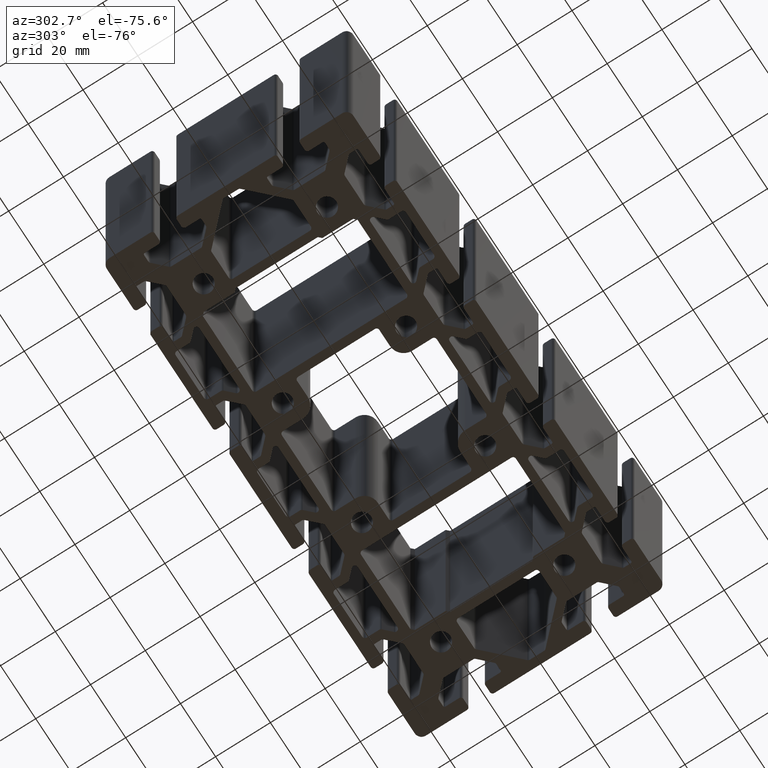
[diagram: clean part render]
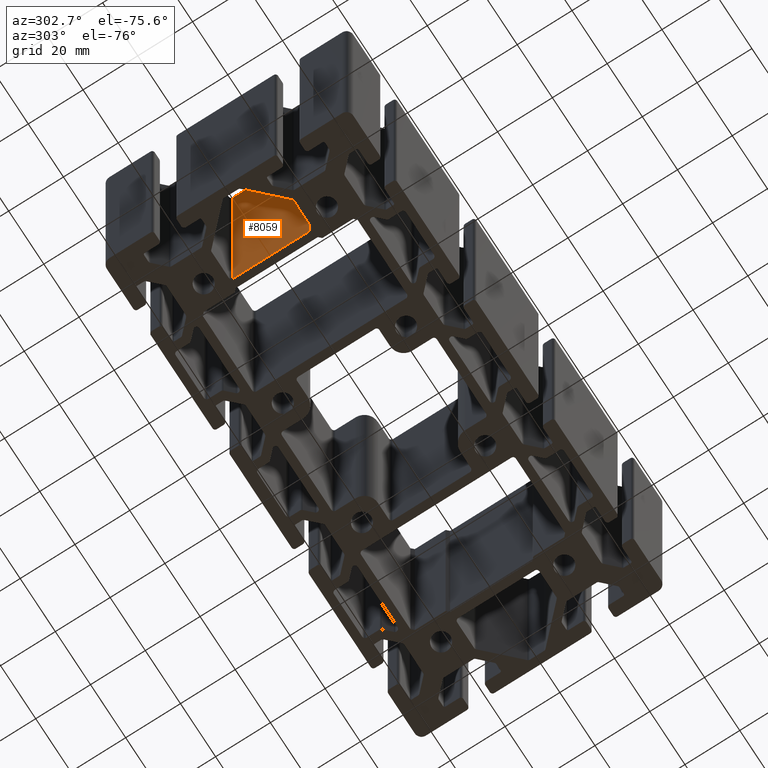
[diagram: same view with one face highlighted and labeled with its STEP entity id]
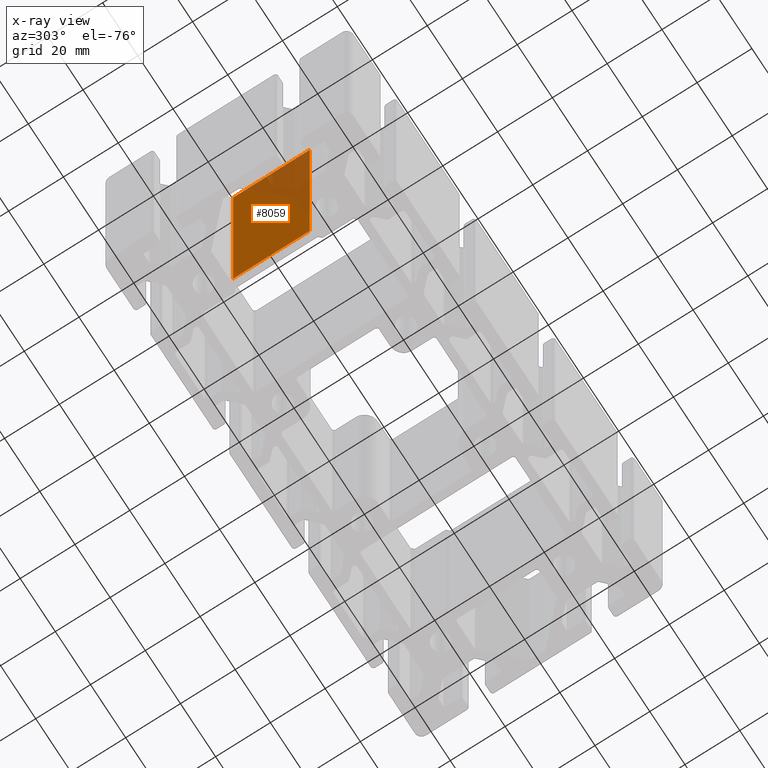
[diagram: x-ray of the same camera — body ghosted, the highlighted face saturated]
A machine part, auxiliary view. The second image highlights one B-rep face of the part: STEP entity #8059.
The next image is the same camera in x-ray: the body ghosted, the highlighted face saturated — about 30% of this face is hidden behind the body in this view.
In plain terms, the highlighted planar face has unit normal (1, -0, 0).
Its self-contained STEP definition (entity closure, byte-faithful):
#1027=FACE_OUTER_BOUND('',#1437,.T.);
#1437=EDGE_LOOP('',(#6587,#6588,#6589,#6590));
#2255=LINE('',#13567,#3055);
#2256=LINE('',#13571,#3056);
#2257=LINE('',#13573,#3057);
#2258=LINE('',#13574,#3058);
#3055=VECTOR('',#11155,100.);
#3056=VECTOR('',#11160,28.);
#3057=VECTOR('',#11161,100.);
#3058=VECTOR('',#11162,28.);
#3879=VERTEX_POINT('',#13564);
#3880=VERTEX_POINT('',#13566);
#3881=VERTEX_POINT('',#13570);
#3882=VERTEX_POINT('',#13572);
#5036=EDGE_CURVE('',#3880,#3879,#2255,.T.);
#5038=EDGE_CURVE('',#3881,#3879,#2256,.T.);
#5039=EDGE_CURVE('',#3882,#3881,#2257,.T.);
#5040=EDGE_CURVE('',#3880,#3882,#2258,.T.);
#6587=ORIENTED_EDGE('',*,*,#5038,.F.);
#6588=ORIENTED_EDGE('',*,*,#5039,.F.);
#6589=ORIENTED_EDGE('',*,*,#5040,.F.);
#6590=ORIENTED_EDGE('',*,*,#5036,.T.);
#7662=PLANE('',#8845);
#8059=ADVANCED_FACE('',(#1027),#7662,.F.);
#8845=AXIS2_PLACEMENT_3D('',#13569,#11158,#11159);
#11155=DIRECTION('',(0.,0.,1.));
#11158=DIRECTION('center_axis',(1.,-1.58603289232166E-15,0.));
#11159=DIRECTION('ref_axis',(1.4210854715202E-15,1.,0.));
#11160=DIRECTION('',(-1.58603289232166E-15,-1.,0.));
#11161=DIRECTION('',(0.,0.,1.));
#11162=DIRECTION('',(1.58603289232166E-15,1.,0.));
#13564=CARTESIAN_POINT('',(-64.0000000000001,-14.,100.));
#13566=CARTESIAN_POINT('',(-64.0000000000001,-14.,0.));
#13567=CARTESIAN_POINT('',(-64.0000000000001,-14.,0.));
#13569=CARTESIAN_POINT('Origin',(-64.0000000000001,-14.,0.));
#13570=CARTESIAN_POINT('',(-64.0000000000001,14.,100.));
#13571=CARTESIAN_POINT('',(-64.0000000000001,-6.99999999999993,100.));
#13572=CARTESIAN_POINT('',(-64.0000000000001,14.,0.));
#13573=CARTESIAN_POINT('',(-64.0000000000001,14.,0.));
#13574=CARTESIAN_POINT('',(-64.0000000000001,-6.99999999999993,0.));